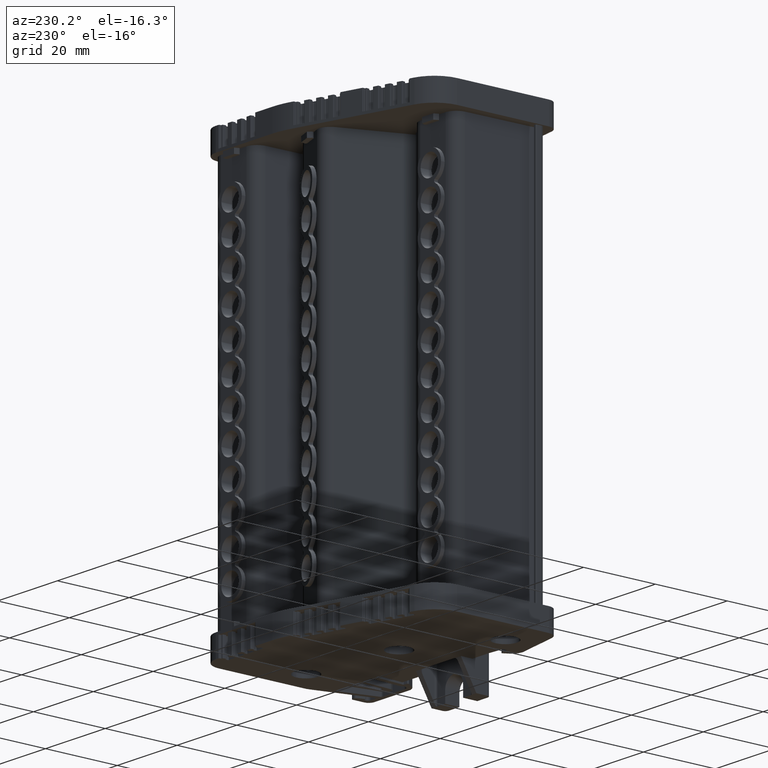
[diagram: clean part render]
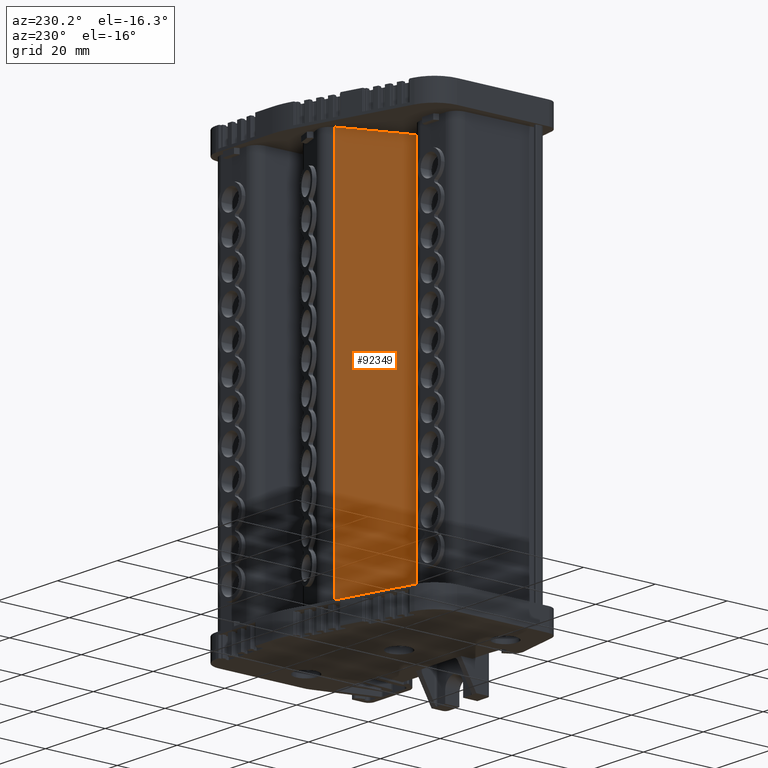
[diagram: same view with one face highlighted and labeled with its STEP entity id]
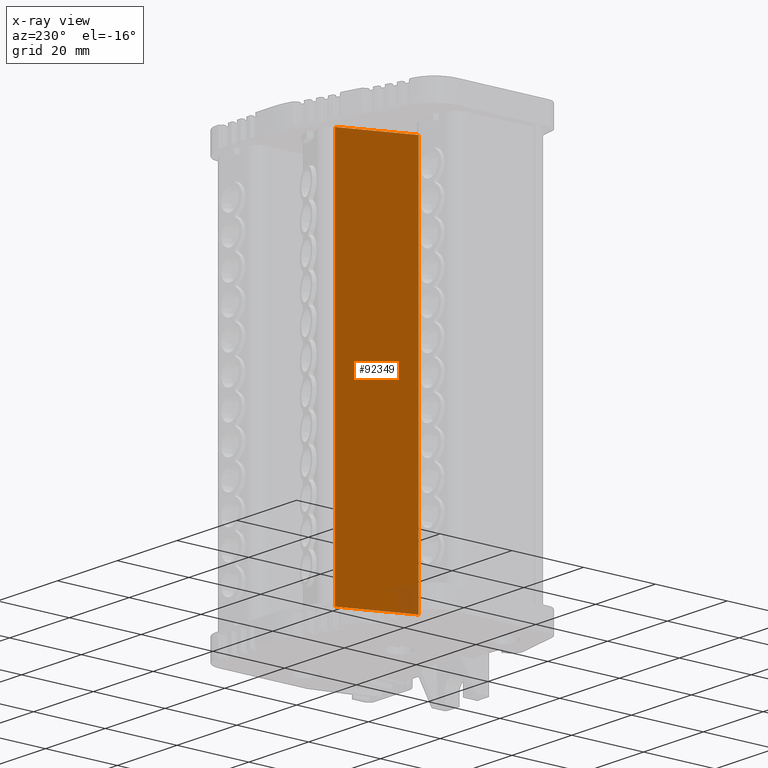
[diagram: x-ray of the same camera — body ghosted, the highlighted face saturated]
A machine part, auxiliary view. The second image highlights one B-rep face of the part: STEP entity #92349.
The next image is the same camera in x-ray: the body ghosted, the highlighted face saturated — about 2% of this face is hidden behind the body in this view.
In plain terms, the highlighted planar face has unit normal (0.9336, -0.3584, -0).
Its self-contained STEP definition (entity closure, byte-faithful):
#2784 = EDGE_CURVE ( 'NONE', #45256, #94536, #10413, .T. ) ;
#2899 = EDGE_CURVE ( 'NONE', #45256, #94504, #9059, .T. ) ;
#4552 = EDGE_CURVE ( 'NONE', #94506, #94536, #22338, .T. ) ;
#4558 = EDGE_CURVE ( 'NONE', #94504, #94506, #22377, .T. ) ;
#7932 = VECTOR ( 'NONE', #10423, 1000.000000000000100 ) ;
#8296 = VECTOR ( 'NONE', #9122, 1000.000000000000000 ) ;
#9059 = LINE ( 'NONE', #9077, #8296 ) ;
#9077 = CARTESIAN_POINT ( 'NONE',  ( -301.2121292510322000, 227.0560189000754600, -7.372141304818210700 ) ) ;
#9122 = DIRECTION ( 'NONE',  ( 2.835521014261849300E-013, -1.088451282903217400E-013, 1.000000000000000000 ) ) ;
#10394 = CARTESIAN_POINT ( 'NONE',  ( -299.7794690109918700, 230.7882375861480600, -6.687066813447880300 ) ) ;
#10413 = LINE ( 'NONE', #10394, #7932 ) ;
#10423 = DIRECTION ( 'NONE',  ( -0.3583670154709109300, -0.9335807850542295900, -0.0000000000000000000 ) ) ;
#22317 = CARTESIAN_POINT ( 'NONE',  ( -308.0043663444449700, 209.3615834074275300, -7.372141304818210700 ) ) ;
#22336 = CARTESIAN_POINT ( 'NONE',  ( -299.7794690109615200, 230.7882375861364300, 100.3073473306244500 ) ) ;
#22338 = LINE ( 'NONE', #22317, #83910 ) ;
#22372 = DIRECTION ( 'NONE',  ( -2.835521014261849300E-013, 1.088451282903217400E-013, -1.000000000000000000 ) ) ;
#22377 = LINE ( 'NONE', #22336, #83960 ) ;
#22379 = DIRECTION ( 'NONE',  ( -0.3583670154709109300, -0.9335807850542295900, -0.0000000000000000000 ) ) ;
#34907 = EDGE_LOOP ( 'NONE', ( #76593, #76645, #76667, #76658 ) ) ;
#45256 = VERTEX_POINT ( 'NONE', #66608 ) ;
#64859 = AXIS2_PLACEMENT_3D ( 'NONE', #77526, #77498, #77524 ) ;
#66608 = CARTESIAN_POINT ( 'NONE',  ( -301.2121292510314000, 227.0560189000769900, -6.687066813447301300 ) ) ;
#76593 = ORIENTED_EDGE ( 'NONE', *, *, #4558, .F. ) ;
#76645 = ORIENTED_EDGE ( 'NONE', *, *, #2899, .F. ) ;
#76658 = ORIENTED_EDGE ( 'NONE', *, *, #4552, .F. ) ;
#76667 = ORIENTED_EDGE ( 'NONE', *, *, #2784, .T. ) ;
#77498 = DIRECTION ( 'NONE',  ( 0.9335807850542297000, -0.3583670154709109900, -3.037252972271853400E-013 ) ) ;
#77515 = FACE_OUTER_BOUND ( 'NONE', #34907, .T. ) ;
#77523 = PLANE ( 'NONE',  #64859 ) ;
#77524 = DIRECTION ( 'NONE',  ( 0.3583670154709109300, 0.9335807850542295900, 0.0000000000000000000 ) ) ;
#77526 = CARTESIAN_POINT ( 'NONE',  ( -299.7794690109920500, 230.7882375861481400, -7.372141304818210700 ) ) ;
#81247 = CARTESIAN_POINT ( 'NONE',  ( -301.2121292510009300, 227.0560189000655100, 100.3073473306244500 ) ) ;
#81324 = CARTESIAN_POINT ( 'NONE',  ( -308.0043663444143900, 209.3615834074158500, 100.3073473306244800 ) ) ;
#81350 = CARTESIAN_POINT ( 'NONE',  ( -308.0043663444449200, 209.3615834074272800, -6.687066813447906100 ) ) ;
#83910 = VECTOR ( 'NONE', #22372, 1000.000000000000000 ) ;
#83960 = VECTOR ( 'NONE', #22379, 1000.000000000000100 ) ;
#92349 = ADVANCED_FACE ( 'NONE', ( #77515 ), #77523, .F. ) ;
#94504 = VERTEX_POINT ( 'NONE', #81247 ) ;
#94506 = VERTEX_POINT ( 'NONE', #81324 ) ;
#94536 = VERTEX_POINT ( 'NONE', #81350 ) ;